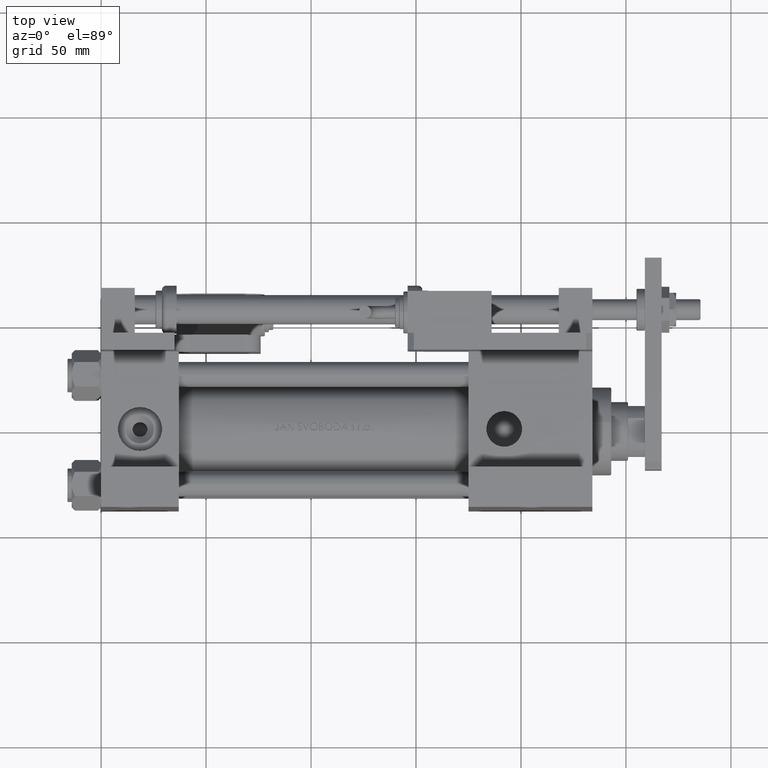
[diagram: clean part render]
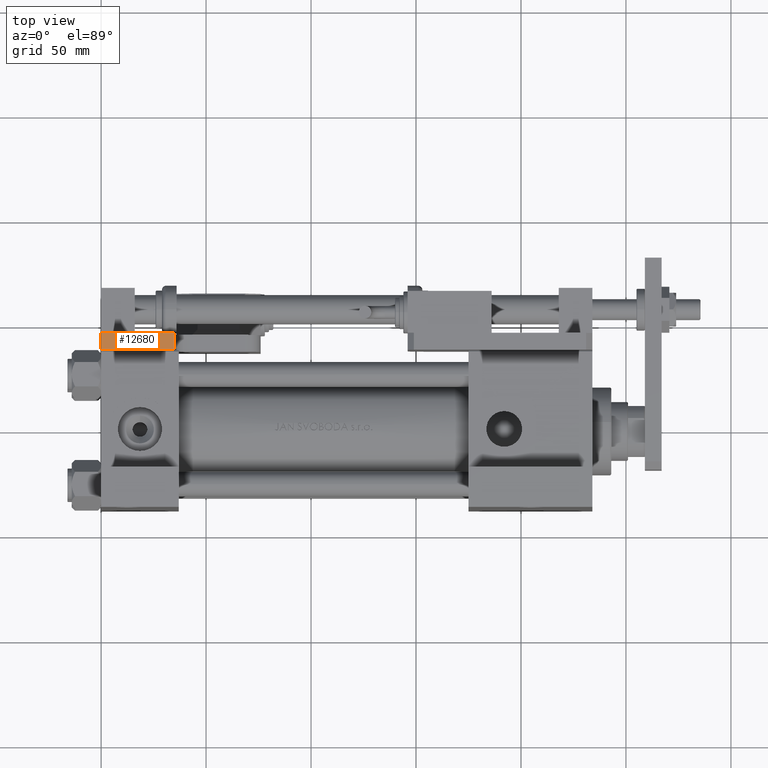
[diagram: same view with one face highlighted and labeled with its STEP entity id]
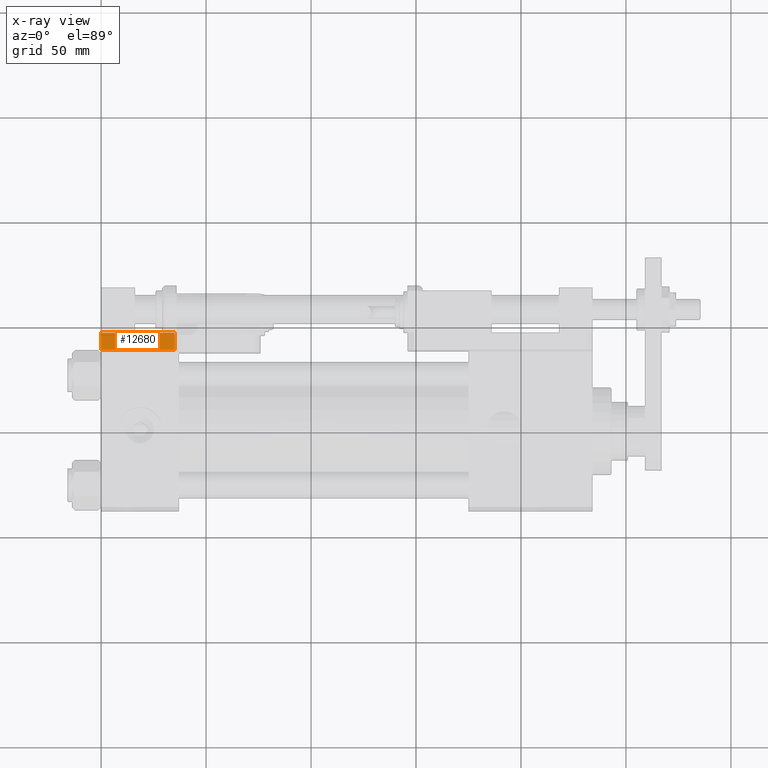
[diagram: x-ray of the same camera — body ghosted, the highlighted face saturated]
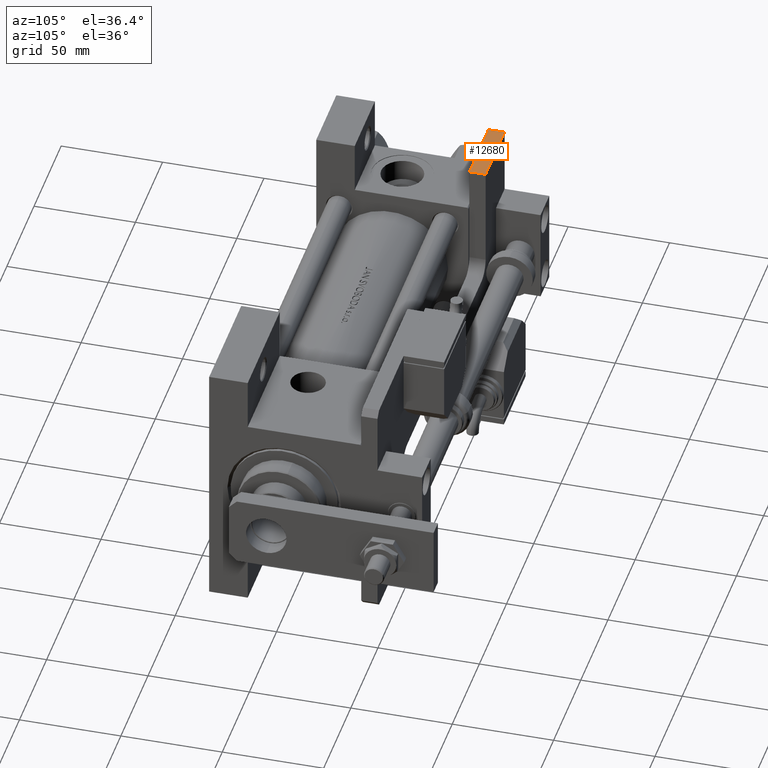
[diagram: same view with one face highlighted and labeled with its STEP entity id]
A machine part, top view. The second image highlights one B-rep face of the part: STEP entity #12680.
The next image is the same camera in x-ray: the body ghosted, the highlighted face saturated — about 0% of this face is hidden behind the body in this view.
A second angle (auxiliary view) of the same face is appended — the face is thin or edge-on in the first view.
In plain terms, the highlighted planar face has unit normal (-0, 0, -1).
Its self-contained STEP definition (entity closure, byte-faithful):
#1550 = DIRECTION ( 'NONE',  ( -1.000000000000000000, -1.189524669241239460E-15, 0.000000000000000000 ) ) ;
#3452 = VERTEX_POINT ( 'NONE', #26248 ) ;
#5117 = EDGE_CURVE ( 'NONE', #42449, #50460, #21553, .T. ) ;
#5837 = CARTESIAN_POINT ( 'NONE',  ( -34.99999999999999289, 114.9999999999999716, 0.000000000000000000 ) ) ;
#7107 = EDGE_CURVE ( 'NONE', #19049, #50460, #31980, .T. ) ;
#8535 = VECTOR ( 'NONE', #9664, 1000.000000000000000 ) ;
#8681 = AXIS2_PLACEMENT_3D ( 'NONE', #39073, #51455, #16695 ) ;
#9007 = ORIENTED_EDGE ( 'NONE', *, *, #5117, .T. ) ;
#9664 = DIRECTION ( 'NONE',  ( -1.000000000000000000, -1.189524669241239460E-15, 0.000000000000000000 ) ) ;
#11766 = CARTESIAN_POINT ( 'NONE',  ( -34.99999999999999289, 114.9999999999999716, 8.000000000000000000 ) ) ;
#12680 = ADVANCED_FACE ( 'NONE', ( #19427 ), #35832, .F. ) ;
#13035 = VECTOR ( 'NONE', #1550, 1000.000000000000000 ) ;
#14173 = EDGE_CURVE ( 'NONE', #3452, #19049, #18296, .T. ) ;
#15010 = DIRECTION ( 'NONE',  ( -0.000000000000000000, -0.000000000000000000, -1.000000000000000000 ) ) ;
#16695 = DIRECTION ( 'NONE',  ( 1.000000000000000000, 1.189524669241239460E-15, 0.000000000000000000 ) ) ;
#17087 = VECTOR ( 'NONE', #15010, 1000.000000000000000 ) ;
#18296 = LINE ( 'NONE', #22053, #13035 ) ;
#19049 = VERTEX_POINT ( 'NONE', #45355 ) ;
#19427 = FACE_OUTER_BOUND ( 'NONE', #25022, .T. ) ;
#19940 = LINE ( 'NONE', #20996, #26094 ) ;
#20996 = CARTESIAN_POINT ( 'NONE',  ( 0.000000000000000000, 115.0000000000000142, 8.000000000000000000 ) ) ;
#21553 = LINE ( 'NONE', #37440, #8535 ) ;
#22053 = CARTESIAN_POINT ( 'NONE',  ( 0.000000000000000000, 115.0000000000000142, 8.000000000000000000 ) ) ;
#25022 = EDGE_LOOP ( 'NONE', ( #9007, #50473, #30677, #45610 ) ) ;
#26094 = VECTOR ( 'NONE', #33093, 1000.000000000000000 ) ;
#26248 = CARTESIAN_POINT ( 'NONE',  ( 0.000000000000000000, 115.0000000000000142, 8.000000000000000000 ) ) ;
#28115 = EDGE_CURVE ( 'NONE', #3452, #42449, #19940, .T. ) ;
#30672 = CARTESIAN_POINT ( 'NONE',  ( 0.000000000000000000, 115.0000000000000142, 0.000000000000000000 ) ) ;
#30677 = ORIENTED_EDGE ( 'NONE', *, *, #14173, .F. ) ;
#31980 = LINE ( 'NONE', #11766, #17087 ) ;
#33093 = DIRECTION ( 'NONE',  ( -0.000000000000000000, -0.000000000000000000, -1.000000000000000000 ) ) ;
#35832 = PLANE ( 'NONE',  #8681 ) ;
#37440 = CARTESIAN_POINT ( 'NONE',  ( 0.000000000000000000, 115.0000000000000142, 0.000000000000000000 ) ) ;
#39073 = CARTESIAN_POINT ( 'NONE',  ( 0.000000000000000000, 115.0000000000000142, 8.000000000000000000 ) ) ;
#42449 = VERTEX_POINT ( 'NONE', #30672 ) ;
#45355 = CARTESIAN_POINT ( 'NONE',  ( -34.99999999999999289, 114.9999999999999716, 8.000000000000000000 ) ) ;
#45610 = ORIENTED_EDGE ( 'NONE', *, *, #28115, .T. ) ;
#50460 = VERTEX_POINT ( 'NONE', #5837 ) ;
#50473 = ORIENTED_EDGE ( 'NONE', *, *, #7107, .F. ) ;
#51455 = DIRECTION ( 'NONE',  ( 1.189524669241239460E-15, -1.000000000000000000, 0.000000000000000000 ) ) ;